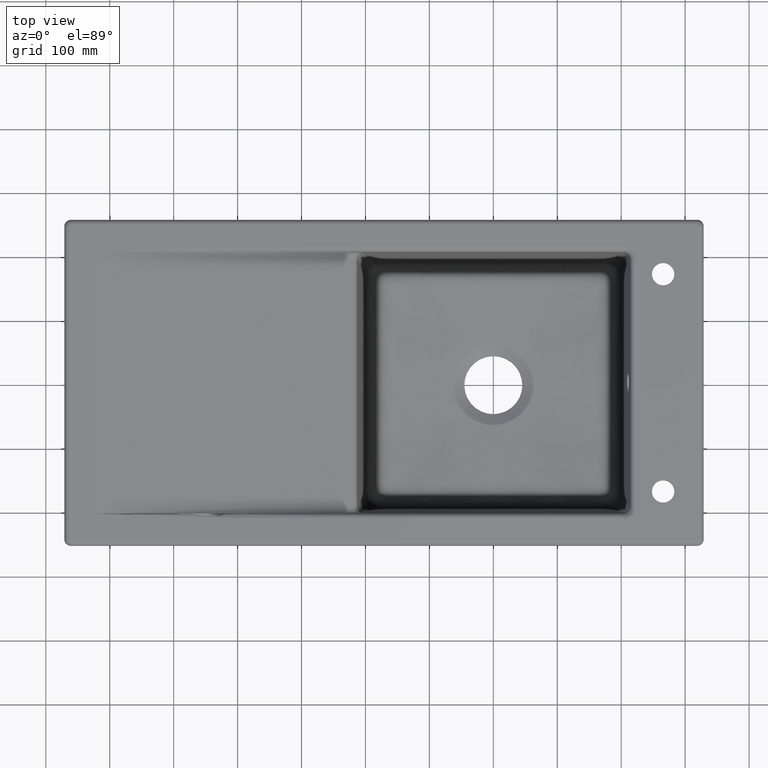
[diagram: clean part render]
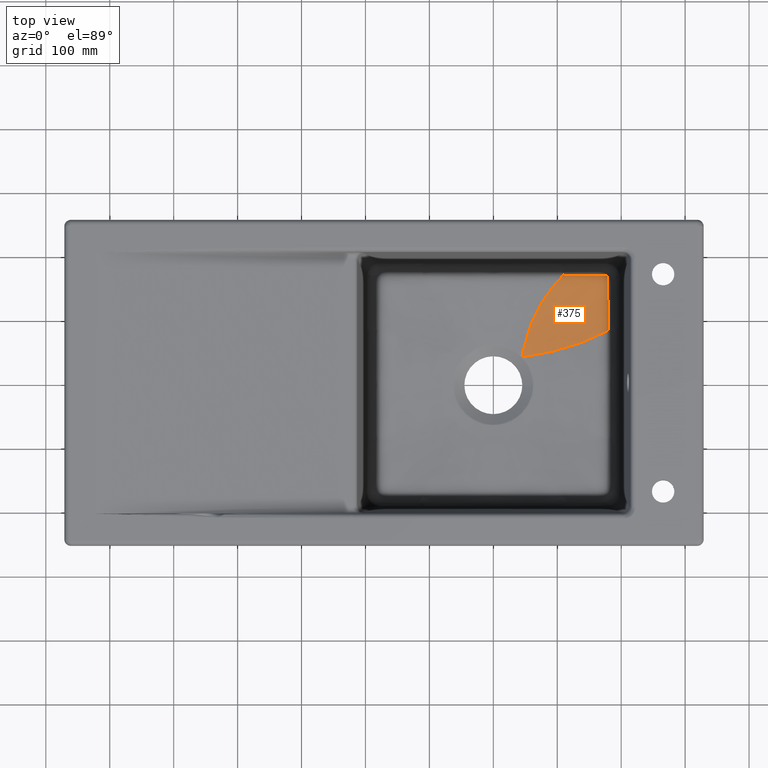
[diagram: same view with one face highlighted and labeled with its STEP entity id]
A machine part, top view. The second image highlights one B-rep face of the part: STEP entity #375.
In plain terms, the highlighted face is a freeform B-spline surface patch.
Its self-contained STEP definition (entity closure, byte-faithful):
#70=B_SPLINE_SURFACE_WITH_KNOTS('',3,3,((#12884,#12885,#12886,#12887,#12888,
#12889,#12890,#12891,#12892,#12893,#12894,#12895,#12896,#12897,#12898,#12899,
#12900,#12901),(#12902,#12903,#12904,#12905,#12906,#12907,#12908,#12909,
#12910,#12911,#12912,#12913,#12914,#12915,#12916,#12917,#12918,#12919),
(#12920,#12921,#12922,#12923,#12924,#12925,#12926,#12927,#12928,#12929,
#12930,#12931,#12932,#12933,#12934,#12935,#12936,#12937),(#12938,#12939,
#12940,#12941,#12942,#12943,#12944,#12945,#12946,#12947,#12948,#12949,#12950,
#12951,#12952,#12953,#12954,#12955),(#12956,#12957,#12958,#12959,#12960,
#12961,#12962,#12963,#12964,#12965,#12966,#12967,#12968,#12969,#12970,#12971,
#12972,#12973),(#12974,#12975,#12976,#12977,#12978,#12979,#12980,#12981,
#12982,#12983,#12984,#12985,#12986,#12987,#12988,#12989,#12990,#12991),
(#12992,#12993,#12994,#12995,#12996,#12997,#12998,#12999,#13000,#13001,
#13002,#13003,#13004,#13005,#13006,#13007,#13008,#13009),(#13010,#13011,
#13012,#13013,#13014,#13015,#13016,#13017,#13018,#13019,#13020,#13021,#13022,
#13023,#13024,#13025,#13026,#13027),(#13028,#13029,#13030,#13031,#13032,
#13033,#13034,#13035,#13036,#13037,#13038,#13039,#13040,#13041,#13042,#13043,
#13044,#13045),(#13046,#13047,#13048,#13049,#13050,#13051,#13052,#13053,
#13054,#13055,#13056,#13057,#13058,#13059,#13060,#13061,#13062,#13063),
(#13064,#13065,#13066,#13067,#13068,#13069,#13070,#13071,#13072,#13073,
#13074,#13075,#13076,#13077,#13078,#13079,#13080,#13081),(#13082,#13083,
#13084,#13085,#13086,#13087,#13088,#13089,#13090,#13091,#13092,#13093,#13094,
#13095,#13096,#13097,#13098,#13099),(#13100,#13101,#13102,#13103,#13104,
#13105,#13106,#13107,#13108,#13109,#13110,#13111,#13112,#13113,#13114,#13115,
#13116,#13117),(#13118,#13119,#13120,#13121,#13122,#13123,#13124,#13125,
#13126,#13127,#13128,#13129,#13130,#13131,#13132,#13133,#13134,#13135),
(#13136,#13137,#13138,#13139,#13140,#13141,#13142,#13143,#13144,#13145,
#13146,#13147,#13148,#13149,#13150,#13151,#13152,#13153),(#13154,#13155,
#13156,#13157,#13158,#13159,#13160,#13161,#13162,#13163,#13164,#13165,#13166,
#13167,#13168,#13169,#13170,#13171)),.UNSPECIFIED.,.F.,.F.,.F.,(4,1,1,1,
1,1,1,1,1,1,1,1,1,4),(4,1,1,1,1,1,1,1,1,1,1,1,1,1,1,4),(0.,0.124564507827518,
0.270470423189598,0.343423380870639,0.416376338551679,0.562282253913759,
0.635235211594799,0.708188169275839,0.78114112695688,0.85409408463792,0.92704704231896,
0.96352352115948,0.98176176057974,1.),(0.,0.0121218472907196,0.0881124744222027,
0.164103101553686,0.240093728685169,0.316084355816652,0.392074982948135,
0.544056237211101,0.620046864342584,0.696037491474068,0.772028118605551,
0.848018745737034,0.924009372868517,0.962004686434258,0.981002343217129,
1.),.UNSPECIFIED.);
#84=(
BOUNDED_CURVE()
B_SPLINE_CURVE(3,(#11010,#11011,#11012,#11013,#11014,#11015,#11016,#11017,
#11018,#11019,#11020,#11021,#11022,#11023,#11024,#11025,#11026,#11027,#11028,
#11029,#11030,#11031,#11032,#11033,#11034,#11035),.UNSPECIFIED.,.F.,.F.)
B_SPLINE_CURVE_WITH_KNOTS((4,2,2,2,2,2,2,2,2,2,2,2,4),(0.,0.0159423591020343,
0.0239135386530519,0.0318847182040686,0.0637694364081364,0.127538872816273,
0.255077745632546,0.510155491265092,0.637694364081366,0.765233236897638,
0.829002673305775,0.892772109713911,1.),.UNSPECIFIED.)
CURVE()
GEOMETRIC_REPRESENTATION_ITEM()
RATIONAL_B_SPLINE_CURVE((1.0000000000003,1.0000000000003,1.0000000000003,
1.0000000000003,1.0000000000003,1.0000000000003,1.0000000000003,1.0000000000003,
1.0000000000003,1.0000000000003,1.0000000000003,1.0000000000003,1.0000000000003,
1.00000000000031,1.00000000000031,1.00000000000031,1.00000000000031,1.00000000000032,
1.00000000000032,1.00000000000032,1.00000000000032,1.00000000000032,1.00000000000032,
1.00000000000033,1.00000000000033,1.00000000000033))
REPRESENTATION_ITEM('')
);
#375=ADVANCED_FACE('',(#614),#70,.F.);
#614=FACE_OUTER_BOUND('',#817,.T.);
#817=EDGE_LOOP('',(#1667,#1668,#1669,#1670,#1671));
#1136=B_SPLINE_CURVE_WITH_KNOTS('',3,(#12565,#12566,#12567,#12568,#12569,
#12570,#12571,#12572,#12573,#12574,#12575,#12576,#12577),.UNSPECIFIED.,
 .F.,.F.,(4,1,1,1,1,1,1,1,1,1,4),(0.,0.141591816998394,0.215551057887774,
0.289510298777154,0.437428780555914,0.511388021445294,0.585347262334674,
0.659306503224054,0.733265744113434,0.881184225892194,1.),.UNSPECIFIED.);
#1137=B_SPLINE_CURVE_WITH_KNOTS('',3,(#12669,#12670,#12671,#12672,#12673,
#12674,#12675,#12676,#12677,#12678,#12679,#12680,#12681,#12682),
 .UNSPECIFIED.,.F.,.F.,(4,1,1,1,1,1,1,1,1,1,1,4),(0.,0.00623660894462787,
0.0831992285541813,0.160161848163736,0.237124467773289,0.314087087382843,
0.391049706992397,0.544974946211505,0.698900185430612,0.775862805040166,
0.85282542464972,1.),.UNSPECIFIED.);
#1141=B_SPLINE_CURVE_WITH_KNOTS('',3,(#12832,#12833,#12834,#12835,#12836,
#12837,#12838,#12839),.UNSPECIFIED.,.F.,.F.,(4,2,2,4),(0.,5.48242813268084E-5,
0.999945175718691,1.),.UNSPECIFIED.);
#1142=B_SPLINE_CURVE_WITH_KNOTS('',3,(#12840,#12841,#12842,#12843,#12844,
#12845,#12846,#12847,#12848,#12849,#12850,#12851,#12852,#12853,#12854,#12855,
#12856,#12857,#12858,#12859,#12860,#12861,#12862,#12863,#12864,#12865,#12866,
#12867,#12868,#12869,#12870,#12871,#12872,#12873,#12874,#12875,#12876,#12877,
#12878,#12879,#12880,#12881,#12882,#12883),.UNSPECIFIED.,.F.,.F.,(4,2,2,
2,2,2,2,2,2,2,2,2,2,1,2,2,2,2,2,1,2,2,4),(0.,0.0625000000000013,0.0937500000000022,
0.109375000000003,0.117187500000003,0.125000000000003,0.187500000000002,
0.218750000000002,0.234375000000002,0.250000000000002,0.375000000000002,
0.437500000000002,0.468750000000002,0.484375000000002,0.492187500000001,
0.5,0.624999999999993,0.68749999999999,0.718749999999989,0.734374999999988,
0.742187499999988,0.749999999999988,1.),.UNSPECIFIED.);
#1667=ORIENTED_EDGE('',*,*,#2833,.F.);
#1668=ORIENTED_EDGE('',*,*,#2838,.T.);
#1669=ORIENTED_EDGE('',*,*,#2834,.F.);
#1670=ORIENTED_EDGE('',*,*,#2839,.T.);
#1671=ORIENTED_EDGE('',*,*,#2811,.F.);
#2444=VERTEX_POINT('',#10977);
#2447=VERTEX_POINT('',#11009);
#2461=VERTEX_POINT('',#12564);
#2462=VERTEX_POINT('',#12683);
#2463=VERTEX_POINT('',#12684);
#2811=EDGE_CURVE('',#2447,#2444,#84,.T.);
#2833=EDGE_CURVE('',#2461,#2447,#1136,.T.);
#2834=EDGE_CURVE('',#2462,#2463,#1137,.T.);
#2838=EDGE_CURVE('',#2461,#2463,#1141,.T.);
#2839=EDGE_CURVE('',#2462,#2444,#1142,.T.);
#10977=CARTESIAN_POINT('',(177.879180234192,170.540093542325,-191.578506722105));
#11009=CARTESIAN_POINT('',(109.362211473929,171.802772814069,-193.232335720157));
#11010=CARTESIAN_POINT('',(109.362663816069,171.803292218612,-193.232457413851));
#11011=CARTESIAN_POINT('',(109.666669719756,171.860010432528,-193.223627122999));
#11012=CARTESIAN_POINT('',(109.982007211186,171.905922642427,-193.216947616811));
#11013=CARTESIAN_POINT('',(110.495975815883,171.93989101215,-193.211436992192));
#11014=CARTESIAN_POINT('',(110.674051461702,171.945341510395,-193.210358683773));
#11015=CARTESIAN_POINT('',(111.055286094061,171.93434757222,-193.210308756833));
#11016=CARTESIAN_POINT('',(111.259672814066,171.916805244614,-193.211329930546));
#11017=CARTESIAN_POINT('',(112.235130701171,171.868708147883,-193.211065776202));
#11018=CARTESIAN_POINT('',(112.957500710658,171.878781618468,-193.203607338577));
#11019=CARTESIAN_POINT('',(115.174466016473,171.864776197476,-193.185480856167));
#11020=CARTESIAN_POINT('',(116.664443637441,171.842451813909,-193.171325117782));
#11021=CARTESIAN_POINT('',(121.120584696645,171.777536900667,-193.116321215263));
#11022=CARTESIAN_POINT('',(124.0871582187,171.725457324035,-193.064861836592));
#11023=CARTESIAN_POINT('',(132.956098670861,171.561202819411,-192.874261869656));
#11024=CARTESIAN_POINT('',(138.822714702234,171.445118458773,-192.699122929928));
#11025=CARTESIAN_POINT('',(147.545964665807,171.277521445368,-192.428006276115));
#11026=CARTESIAN_POINT('',(150.444081053288,171.220986523261,-192.336710096592));
#11027=CARTESIAN_POINT('',(156.23282483097,171.099491591714,-192.157526870232));
#11028=CARTESIAN_POINT('',(159.116981033387,171.037985052405,-192.070404249644));
#11029=CARTESIAN_POINT('',(163.465323978389,170.924355236036,-191.941912734809));
#11030=CARTESIAN_POINT('',(164.921469082898,170.881449702974,-191.898612803742));
#11031=CARTESIAN_POINT('',(167.792263181542,170.809266968183,-191.814795581755));
#11032=CARTESIAN_POINT('',(169.205764574198,170.780301267845,-191.774877548337));
#11033=CARTESIAN_POINT('',(172.995517856896,170.700816868522,-191.680206203672));
#11034=CARTESIAN_POINT('',(175.413487499374,170.633220400502,-191.63218948057));
#11035=CARTESIAN_POINT('',(177.879175846886,170.540132928062,-191.578521635298));
#12564=CARTESIAN_POINT('',(44.3689322543329,45.0937120771915,-201.978779737527));
#12565=CARTESIAN_POINT('',(44.3689362924662,45.0937164682386,-201.978998522534));
#12566=CARTESIAN_POINT('',(45.6807365134577,51.8027942856332,-201.820552515146));
#12567=CARTESIAN_POINT('',(47.9539297138038,61.9624507419708,-201.518959765869));
#12568=CARTESIAN_POINT('',(51.777153432494,75.4042903540788,-200.997339562121));
#12569=CARTESIAN_POINT('',(56.2968243873298,88.9472672362657,-200.385546779812));
#12570=CARTESIAN_POINT('',(61.6909776473194,102.171434764291,-199.654434937414));
#12571=CARTESIAN_POINT('',(67.9500016752922,114.990515766059,-198.807635731743));
#12572=CARTESIAN_POINT('',(73.0712458710614,124.380049353851,-198.114291635568));
#12573=CARTESIAN_POINT('',(78.6146951225087,133.521775639071,-197.359538479105));
#12574=CARTESIAN_POINT('',(86.5552524937462,145.354637605332,-196.28239288272));
#12575=CARTESIAN_POINT('',(96.6234702028426,158.324000774887,-194.945223083118));
#12576=CARTESIAN_POINT('',(105.353765467584,167.720765110537,-193.691170892951));
#12577=CARTESIAN_POINT('',(109.361723803895,171.802246613293,-193.232277846092));
#12669=CARTESIAN_POINT('',(179.512881132391,85.1143916647424,-193.401842955131));
#12670=CARTESIAN_POINT('',(179.253208415546,84.9793908047028,-193.431171822952));
#12671=CARTESIAN_POINT('',(175.787175783564,83.1823690687327,-193.824179680294));
#12672=CARTESIAN_POINT('',(169.065655460795,79.8250567808445,-194.615514358731));
#12673=CARTESIAN_POINT('',(159.211940416895,75.2757300717008,-195.516277973933));
#12674=CARTESIAN_POINT('',(149.23230852189,71.008640097478,-196.406733529103));
#12675=CARTESIAN_POINT('',(139.131489926792,67.0270389450302,-197.253850367511));
#12676=CARTESIAN_POINT('',(125.509932913777,62.1038610542545,-198.281083182657));
#12677=CARTESIAN_POINT('',(108.222603700192,56.6744315025275,-199.419979359816));
#12678=CARTESIAN_POINT('',(90.6474916604687,52.2161078874131,-200.356053177396));
#12679=CARTESIAN_POINT('',(76.449562559933,49.2382574094846,-200.980524001914));
#12680=CARTESIAN_POINT('',(62.4810191383402,46.7302241301031,-201.511487529428));
#12681=CARTESIAN_POINT('',(52.0211548232311,45.2211512842149,-201.817524530477));
#12682=CARTESIAN_POINT('',(45.1409938508793,44.3179167443783,-201.978151579039));
#12683=CARTESIAN_POINT('',(179.512885030844,85.1143895389247,-193.40186768621));
#12684=CARTESIAN_POINT('',(45.140998257444,44.31792102221,-201.978364768914));
#12832=CARTESIAN_POINT('',(44.3690077499637,45.0941144515594,-201.978551320735));
#12833=CARTESIAN_POINT('',(44.3690219386256,45.0941003561356,-201.97855135073));
#12834=CARTESIAN_POINT('',(44.3690361272888,45.0940862607131,-201.978551380719));
#12835=CARTESIAN_POINT('',(44.6278243351648,44.8369983917354,-201.979098356959));
#12836=CARTESIAN_POINT('',(44.8849897342337,44.5782923515301,-201.979078898136));
#12837=CARTESIAN_POINT('',(45.1404355874303,44.3178830857217,-201.978590574522));
#12838=CARTESIAN_POINT('',(45.1404495928249,44.3178688081797,-201.97859054775));
#12839=CARTESIAN_POINT('',(45.1404635982211,44.3178545306393,-201.978590520971));
#12840=CARTESIAN_POINT('',(179.512777802272,85.1143910624747,-193.401892639696));
#12841=CARTESIAN_POINT('',(179.532220793061,86.4259914771197,-193.405361283129));
#12842=CARTESIAN_POINT('',(179.539239054987,87.9708477592128,-193.409987816762));
#12843=CARTESIAN_POINT('',(179.539299655567,90.6410620870974,-193.40916933752));
#12844=CARTESIAN_POINT('',(179.537615992503,91.5899558173404,-193.407775716569));
#12845=CARTESIAN_POINT('',(179.534071437699,93.1019103361031,-193.402879043541));
#12846=CARTESIAN_POINT('',(179.532723818059,93.6206635292685,-193.400781683847));
#12847=CARTESIAN_POINT('',(179.530684636148,94.4209871558908,-193.396803764521));
#12848=CARTESIAN_POINT('',(179.530002257172,94.6914606275535,-193.395339065565));
#12849=CARTESIAN_POINT('',(179.528674626484,95.2398116975167,-193.392108900074));
#12850=CARTESIAN_POINT('',(179.527919199459,95.5690414601617,-193.389991856108));
#12851=CARTESIAN_POINT('',(179.523473785004,97.6411149293107,-193.375805610466));
#12852=CARTESIAN_POINT('',(179.517207057649,99.4521754931825,-193.357980494743));
#12853=CARTESIAN_POINT('',(179.505858131888,102.12289162727,-193.324947846639));
#12854=CARTESIAN_POINT('',(179.501744657409,103.005483235958,-193.312907622261));
#12855=CARTESIAN_POINT('',(179.495245469451,104.317935129052,-193.293530936199));
#12856=CARTESIAN_POINT('',(179.493024476395,104.753513099858,-193.286852376099));
#12857=CARTESIAN_POINT('',(179.48849834477,105.620863605653,-193.273091764056));
#12858=CARTESIAN_POINT('',(179.486490463792,105.99806761137,-193.266931978438));
#12859=CARTESIAN_POINT('',(179.46257548275,110.358107851717,-193.193275546733));
#12860=CARTESIAN_POINT('',(179.438517614042,114.072839370526,-193.113656853663));
#12861=CARTESIAN_POINT('',(179.393435389601,119.411352657435,-192.990646383155));
#12862=CARTESIAN_POINT('',(179.376996350391,121.151897475381,-192.948946516595));
#12863=CARTESIAN_POINT('',(179.349947476013,123.705110002311,-192.886513429325));
#12864=CARTESIAN_POINT('',(179.340534041955,124.546578802899,-192.865720165416));
#12865=CARTESIAN_POINT('',(179.32578377341,125.794475527629,-192.834663765836));
#12866=CARTESIAN_POINT('',(179.318250497123,126.414847424461,-192.819166881123));
#12867=CARTESIAN_POINT('',(179.310471255144,127.029872824185,-192.803727816892));
#12868=CARTESIAN_POINT('',(179.305229480421,127.438703604175,-192.793449048834));
#12869=CARTESIAN_POINT('',(179.303179329586,127.597085784845,-192.789462515076));
#12870=CARTESIAN_POINT('',(179.247495456325,131.824481675534,-192.682859286061));
#12871=CARTESIAN_POINT('',(179.183220030197,135.589575126584,-192.585334321233));
#12872=CARTESIAN_POINT('',(179.066419693588,140.92628663615,-192.446422517023));
#12873=CARTESIAN_POINT('',(179.024084484202,142.653308999068,-192.401483377827));
#12874=CARTESIAN_POINT('',(178.955031482482,145.166789781214,-192.337059686816));
#12875=CARTESIAN_POINT('',(178.931085988475,145.991779875828,-192.316059582488));
#12876=CARTESIAN_POINT('',(178.893685908867,147.210181904803,-192.285122011088));
#12877=CARTESIAN_POINT('',(178.874615282913,147.814611806388,-192.269793943032));
#12878=CARTESIAN_POINT('',(178.854970633667,148.411914371914,-192.254649726711));
#12879=CARTESIAN_POINT('',(178.841744529221,148.808535292374,-192.244591471273));
#12880=CARTESIAN_POINT('',(178.836130119675,148.97503147276,-192.240368621208));
#12881=CARTESIAN_POINT('',(178.578490456292,156.490949188091,-192.049626896341));
#12882=CARTESIAN_POINT('',(178.149615602153,163.571225179825,-191.791610664386));
#12883=CARTESIAN_POINT('',(177.879175141205,170.540065427035,-191.578485102144));
#12884=CARTESIAN_POINT('',(190.172256934405,175.276128015536,-191.296018377343));
#12885=CARTESIAN_POINT('',(189.855051349653,175.250297772379,-191.297554253339));
#12886=CARTESIAN_POINT('',(187.549152269575,175.063755776512,-191.3132807604));
#12887=CARTESIAN_POINT('',(183.251167188915,174.73292744938,-191.39933921129));
#12888=CARTESIAN_POINT('',(177.244844061671,174.316068666936,-191.493982930849));
#12889=CARTESIAN_POINT('',(171.223849757647,173.941145999974,-191.602229197767));
#12890=CARTESIAN_POINT('',(165.182397031386,173.608139143475,-191.769651581089));
#12891=CARTESIAN_POINT('',(157.100084412642,173.221956642021,-192.004730011793));
#12892=CARTESIAN_POINT('',(148.98254895741,172.923020560463,-192.268921066927));
#12893=CARTESIAN_POINT('',(140.833395152461,172.714157155233,-192.535624903428));
#12894=CARTESIAN_POINT('',(134.707842945076,172.601779367504,-192.724535653631));
#12895=CARTESIAN_POINT('',(128.570214887459,172.534990215698,-192.890752391789));
#12896=CARTESIAN_POINT('',(122.423035455111,172.514344411329,-193.022174976953));
#12897=CARTESIAN_POINT('',(117.296244399471,172.527026982413,-193.096122982961));
#12898=CARTESIAN_POINT('',(113.707355875505,172.546516680275,-193.127619806102));
#12899=CARTESIAN_POINT('',(111.656864809438,172.55995808445,-193.142024679774));
#12900=CARTESIAN_POINT('',(110.631632416582,172.567180700427,-193.142296847013));
#12901=CARTESIAN_POINT('',(110.119186433257,172.571038564212,-193.147178524289));
#12902=CARTESIAN_POINT('',(189.48469349856,171.727556904665,-191.256125707373));
#12903=CARTESIAN_POINT('',(189.154527754014,171.695057051101,-191.260277969121));
#12904=CARTESIAN_POINT('',(186.754364804527,171.460322854416,-191.295848388671));
#12905=CARTESIAN_POINT('',(182.279777773028,171.043681813772,-191.428877937283));
#12906=CARTESIAN_POINT('',(176.019762920013,170.517778548681,-191.577517100608));
#12907=CARTESIAN_POINT('',(169.741268544346,170.043765705831,-191.737829689181));
#12908=CARTESIAN_POINT('',(163.437338854656,169.621638000075,-191.964614883125));
#12909=CARTESIAN_POINT('',(154.99851582361,169.13035167093,-192.274443683656));
#12910=CARTESIAN_POINT('',(146.515898461016,168.746998176562,-192.609365925341));
#12911=CARTESIAN_POINT('',(137.994038152372,168.475046024785,-192.937218899902));
#12912=CARTESIAN_POINT('',(131.585647446612,168.325817318729,-193.164648021503));
#12913=CARTESIAN_POINT('',(125.162241964028,168.232981021323,-193.359646505952));
#12914=CARTESIAN_POINT('',(118.726911884784,168.197274388723,-193.507612705912));
#12915=CARTESIAN_POINT('',(113.358898116808,168.204511246183,-193.583778886338));
#12916=CARTESIAN_POINT('',(109.601035671844,168.222720440923,-193.610425450544));
#12917=CARTESIAN_POINT('',(107.454028759946,168.235981587202,-193.620677162843));
#12918=CARTESIAN_POINT('',(106.380534777358,168.243239518444,-193.617238108821));
#12919=CARTESIAN_POINT('',(105.843991539704,168.247170327652,-193.621183590598));
#12920=CARTESIAN_POINT('',(188.043874136294,164.002078651297,-191.384783254427));
#12921=CARTESIAN_POINT('',(187.686472805183,163.95462007052,-191.397413755677));
#12922=CARTESIAN_POINT('',(185.088183789205,163.611740667642,-191.495966743165));
#12923=CARTESIAN_POINT('',(180.242020006588,163.00173097618,-191.762235842328));
#12924=CARTESIAN_POINT('',(173.448423403823,162.228015584453,-192.065232461409));
#12925=CARTESIAN_POINT('',(166.627801108982,161.526520077142,-192.369039785728));
#12926=CARTESIAN_POINT('',(159.77109380527,160.897304224381,-192.7451110531));
#12927=CARTESIAN_POINT('',(150.581298671819,160.157949490577,-193.235103990608));
#12928=CARTESIAN_POINT('',(141.329360594629,159.56877852686,-193.727089354698));
#12929=CARTESIAN_POINT('',(132.021971176741,159.134558307883,-194.178508996675));
#12930=CARTESIAN_POINT('',(125.017385552383,158.884958277089,-194.477162703668));
#12931=CARTESIAN_POINT('',(117.991490865162,158.713831883306,-194.717516897964));
#12932=CARTESIAN_POINT('',(110.948506935752,158.622385245063,-194.880351017189));
#12933=CARTESIAN_POINT('',(105.071614061571,158.597635203609,-194.940951471314));
#12934=CARTESIAN_POINT('',(100.95713954625,158.598544885075,-194.941415479162));
#12935=CARTESIAN_POINT('',(98.6063859749344,158.603016387947,-194.933152635918));
#12936=CARTESIAN_POINT('',(97.4309991449279,158.606130495338,-194.917125335249));
#12937=CARTESIAN_POINT('',(96.8435681260804,158.608094177616,-194.916374471147));
#12938=CARTESIAN_POINT('',(186.417114912769,153.997524251326,-191.601902192915));
#12939=CARTESIAN_POINT('',(186.028753273793,153.927481859179,-191.624359195683));
#12940=CARTESIAN_POINT('',(183.205153843634,153.421219054467,-191.795447310629));
#12941=CARTESIAN_POINT('',(177.935326546167,152.517533612841,-192.20908057883));
#12942=CARTESIAN_POINT('',(170.53346257787,151.363163145854,-192.679654530005));
#12943=CARTESIAN_POINT('',(163.093234222712,150.307644754849,-193.138095376));
#12944=CARTESIAN_POINT('',(155.604107166439,149.351210255304,-193.667689958367));
#12945=CARTESIAN_POINT('',(145.554497999444,148.21216827865,-194.338345639201));
#12946=CARTESIAN_POINT('',(135.420725612484,147.278328855686,-194.980530509452));
#12947=CARTESIAN_POINT('',(125.212431209137,146.555842789586,-195.543128082923));
#12948=CARTESIAN_POINT('',(117.523868985557,146.117642322963,-195.901999933191));
#12949=CARTESIAN_POINT('',(109.806522069689,145.786516366361,-196.175941224734));
#12950=CARTESIAN_POINT('',(102.065772528933,145.564466241717,-196.342107179768));
#12951=CARTESIAN_POINT('',(95.6041361886652,145.450220201604,-196.378206321167));
#12952=CARTESIAN_POINT('',(91.0795712619613,145.395737525622,-196.346716582755));
#12953=CARTESIAN_POINT('',(88.4943988341472,145.370212611525,-196.316563889938));
#12954=CARTESIAN_POINT('',(87.2017574464222,145.358769964763,-196.286766335491));
#12955=CARTESIAN_POINT('',(86.5557373787459,145.353591665338,-196.280260727248));
#12956=CARTESIAN_POINT('',(185.177692655116,145.393714721426,-191.841370910013));
#12957=CARTESIAN_POINT('',(184.765576014593,145.302569641504,-191.871880566303));
#12958=CARTESIAN_POINT('',(181.769032104945,144.643579115457,-192.102026257344));
#12959=CARTESIAN_POINT('',(176.173135646664,143.464556193683,-192.630662172516));
#12960=CARTESIAN_POINT('',(168.30312978964,141.951062997705,-193.230882913632));
#12961=CARTESIAN_POINT('',(160.38474961986,140.559166150532,-193.808701147783));
#12962=CARTESIAN_POINT('',(152.407029764889,139.289305155424,-194.451055905634));
#12963=CARTESIAN_POINT('',(141.692575850216,137.763546327069,-195.251789998837));
#12964=CARTESIAN_POINT('',(130.87604579456,136.489785744124,-195.99768136341));
#12965=CARTESIAN_POINT('',(119.969746712122,135.475167952868,-196.633532403105));
#12966=CARTESIAN_POINT('',(111.751037817588,134.841225891312,-197.030604937263));
#12967=CARTESIAN_POINT('',(103.497506984282,134.338599699101,-197.32453709831));
#12968=CARTESIAN_POINT('',(95.2153367781488,133.970103823337,-197.490945091253));
#12969=CARTESIAN_POINT('',(88.2996362544965,133.750550412526,-197.509839375975));
#12970=CARTESIAN_POINT('',(83.4563714728925,133.62886411569,-197.456959281699));
#12971=CARTESIAN_POINT('',(80.6889269219507,133.566470666959,-197.4121224445));
#12972=CARTESIAN_POINT('',(79.3050954623289,133.537034564581,-197.373553567514));
#12973=CARTESIAN_POINT('',(78.6134875144535,133.522973060424,-197.363006631971));
#12974=CARTESIAN_POINT('',(184.037121508269,136.720396762032,-192.116090458054));
#12975=CARTESIAN_POINT('',(183.60301881626,136.606872583055,-192.154411722969));
#12976=CARTESIAN_POINT('',(180.446356469893,135.785887355651,-192.441577873785));
#12977=CARTESIAN_POINT('',(174.54791659149,134.314421432624,-193.077719123389));
#12978=CARTESIAN_POINT('',(166.243503553257,132.418378286898,-193.797912467904));
#12979=CARTESIAN_POINT('',(157.880452397169,130.666979532539,-194.485698187415));
#12980=CARTESIAN_POINT('',(149.447914871651,129.060913359495,-195.227398837881));
#12981=CARTESIAN_POINT('',(138.114116199309,127.11842397258,-196.140132824283));
#12982=CARTESIAN_POINT('',(126.660853087908,125.475213666632,-196.970883966912));
#12983=CARTESIAN_POINT('',(115.103204957095,124.13929932032,-197.662500915152));
#12984=CARTESIAN_POINT('',(106.389609184052,123.287906783044,-198.086399641072));
#12985=CARTESIAN_POINT('',(97.6353604643542,122.592258090384,-198.39167235));
#12986=CARTESIAN_POINT('',(88.8473171429138,122.05607243413,-198.553423250542));
#12987=CARTESIAN_POINT('',(81.507105696308,121.713895866264,-198.554693110195));
#12988=CARTESIAN_POINT('',(76.3656929517331,121.513215727339,-198.482186067327));
#12989=CARTESIAN_POINT('',(73.4276606291671,121.407328971406,-198.424060927849));
#12990=CARTESIAN_POINT('',(71.9584706772211,121.356640304316,-198.378057055724));
#12991=CARTESIAN_POINT('',(71.2241737145078,121.332066827213,-198.36372386695));
#12992=CARTESIAN_POINT('',(183.047990568563,127.952152397654,-192.41389394358));
#12993=CARTESIAN_POINT('',(182.594610218533,127.814505893099,-192.459234410262));
#12994=CARTESIAN_POINT('',(179.297466323524,126.818869933992,-192.797285403188));
#12995=CARTESIAN_POINT('',(173.132489058216,125.031601729035,-193.524650907053));
#12996=CARTESIAN_POINT('',(164.445211241791,122.721016817403,-194.344990659333));
#12997=CARTESIAN_POINT('',(155.688594383104,120.57853523919,-195.124993950554));
#12998=CARTESIAN_POINT('',(146.852729620002,118.605155369381,-195.943963866241));
#12999=CARTESIAN_POINT('',(134.968864761983,116.204934529771,-196.941212838123));
#13000=CARTESIAN_POINT('',(122.948821500237,114.151911812192,-197.831546268169));
#13001=CARTESIAN_POINT('',(110.810611152091,112.454794311633,-198.559050084926));
#13002=CARTESIAN_POINT('',(101.655564427432,111.356223706584,-198.999157343155));
#13003=CARTESIAN_POINT('',(92.4542868056311,110.438060090215,-199.310919052625));
#13004=CARTESIAN_POINT('',(83.2141253312089,109.705064828297,-199.470467956763));
#13005=CARTESIAN_POINT('',(75.494047299561,109.216542643639,-199.463053745285));
#13006=CARTESIAN_POINT('',(70.0855099115238,108.92073960426,-199.380998596459));
#13007=CARTESIAN_POINT('',(66.9945210108066,108.762306087026,-199.316136746603));
#13008=CARTESIAN_POINT('',(65.4487699231493,108.685916179154,-199.267001278831));
#13009=CARTESIAN_POINT('',(64.6761566508037,108.648607104375,-199.250431400626));
#13010=CARTESIAN_POINT('',(182.216231266576,119.104916645573,-192.704558299247));
#13011=CARTESIAN_POINT('',(181.746386438684,118.941700670964,-192.755679833332));
#13012=CARTESIAN_POINT('',(178.329157016806,117.760909236166,-193.135289102369));
#13013=CARTESIAN_POINT('',(171.93502770649,115.638473846641,-193.932318216365));
#13014=CARTESIAN_POINT('',(162.918260926768,112.886875017461,-194.827233303663));
#13015=CARTESIAN_POINT('',(153.82093433856,110.327220041369,-195.67754886422));
#13016=CARTESIAN_POINT('',(144.6349007377,107.96087897675,-196.549145517405));
#13017=CARTESIAN_POINT('',(132.272361925143,105.069168055523,-197.60212268447));
#13018=CARTESIAN_POINT('',(119.757439632582,102.573153859166,-198.528638005505));
#13019=CARTESIAN_POINT('',(107.111236667267,100.482051582913,-199.277205721751));
#13020=CARTESIAN_POINT('',(97.5694292722163,99.1118897294786,-199.728285394478));
#13021=CARTESIAN_POINT('',(87.9759833644309,97.9470038557147,-200.048655587191));
#13022=CARTESIAN_POINT('',(78.3385476086739,96.9933349306625,-200.217018109354));
#13023=CARTESIAN_POINT('',(70.2840858189083,96.3391000410049,-200.218318519703));
#13024=CARTESIAN_POINT('',(64.6399978581308,95.9350809745645,-200.143410346042));
#13025=CARTESIAN_POINT('',(61.4139879474006,95.71677839484,-200.082342771466));
#13026=CARTESIAN_POINT('',(59.8006218212071,95.6111029248289,-200.036435033098));
#13027=CARTESIAN_POINT('',(58.9941384530225,95.5592664995641,-200.020222549213));
#13028=CARTESIAN_POINT('',(181.671519825974,112.434403207623,-192.90835850616));
#13029=CARTESIAN_POINT('',(181.190740299733,112.251367229388,-192.963040317459));
#13030=CARTESIAN_POINT('',(177.693695794123,110.927042445049,-193.368035097546));
#13031=CARTESIAN_POINT('',(171.146485591409,108.544629603151,-194.204680732137));
#13032=CARTESIAN_POINT('',(161.909404637697,105.450510441531,-195.140733404852));
#13033=CARTESIAN_POINT('',(152.583077339551,102.566381619934,-196.031384977193));
#13034=CARTESIAN_POINT('',(143.161088870576,99.8939227084718,-196.929247721053));
#13035=CARTESIAN_POINT('',(130.475349400907,96.6185843871201,-198.009201161825));
#13036=CARTESIAN_POINT('',(117.625305007478,93.7755571403993,-198.951851906239));
#13037=CARTESIAN_POINT('',(104.634456911098,91.374346180693,-199.71063094682));
#13038=CARTESIAN_POINT('',(94.8299615122908,89.7895876408155,-200.169253375129));
#13039=CARTESIAN_POINT('',(84.9698460161277,88.4288350556881,-200.499634015682));
#13040=CARTESIAN_POINT('',(75.0618917628718,87.2989828114487,-200.683171743077));
#13041=CARTESIAN_POINT('',(66.7793870990683,86.5118042366645,-200.702724153725));
#13042=CARTESIAN_POINT('',(60.9744208856946,86.020782855445,-200.643881675906));
#13043=CARTESIAN_POINT('',(57.6561102738192,85.7543178239889,-200.592343040764));
#13044=CARTESIAN_POINT('',(55.996504093443,85.6250852407419,-200.552768083733));
#13045=CARTESIAN_POINT('',(55.1668402333382,85.5615567785266,-200.538492711264));
#13046=CARTESIAN_POINT('',(181.206416984199,105.733531910803,-193.084896233758));
#13047=CARTESIAN_POINT('',(180.716126203492,105.530117611113,-193.142170776011));
#13048=CARTESIAN_POINT('',(177.149586962092,104.058205954372,-193.56539352229));
#13049=CARTESIAN_POINT('',(170.468214059565,101.408333916273,-194.42675520056));
#13050=CARTESIAN_POINT('',(161.037814569232,97.9614387409065,-195.386694739081));
#13051=CARTESIAN_POINT('',(151.50921671307,94.742694354953,-196.303523020973));
#13052=CARTESIAN_POINT('',(141.878149176742,91.7541205894278,-197.213382472783));
#13053=CARTESIAN_POINT('',(128.905293213945,88.0819421074211,-198.304999343211));
#13054=CARTESIAN_POINT('',(115.756454198756,84.8788251779814,-199.253682928263));
#13055=CARTESIAN_POINT('',(102.457611561664,82.1544739726048,-200.01937648851));
#13056=CARTESIAN_POINT('',(92.4180420778814,80.3453547660014,-200.487268155569));
#13057=CARTESIAN_POINT('',(82.3189505150305,78.778997586335,-200.834322059568));
#13058=CARTESIAN_POINT('',(72.1681573491944,77.4633189514858,-201.045404405855));
#13059=CARTESIAN_POINT('',(63.6805612952809,76.5353565899349,-201.098674945473));
#13060=CARTESIAN_POINT('',(57.7306484795135,75.9520431288257,-201.069533059424));
#13061=CARTESIAN_POINT('',(54.3290868920474,75.6344630621454,-201.035967518992));
#13062=CARTESIAN_POINT('',(52.627754444963,75.4802322874367,-201.007546775888));
#13063=CARTESIAN_POINT('',(51.7771535113142,75.4042906528175,-200.997339551454));
#13064=CARTESIAN_POINT('',(180.824043722443,99.0065575199537,-193.219702066444));
#13065=CARTESIAN_POINT('',(180.32572672783,98.7822800215136,-193.278389607954));
#13066=CARTESIAN_POINT('',(176.700462133926,97.159259267611,-193.711164373247));
#13067=CARTESIAN_POINT('',(169.904698556579,94.2354014934264,-194.579837961614));
#13068=CARTESIAN_POINT('',(160.309204330838,90.4267194022418,-195.543712544363));
#13069=CARTESIAN_POINT('',(150.606336253065,86.8643803230851,-196.47063410722));
#13070=CARTESIAN_POINT('',(140.794377655258,83.5507750970542,-197.377073733528));
#13071=CARTESIAN_POINT('',(127.572294997645,79.4698746425942,-198.464547622752));
#13072=CARTESIAN_POINT('',(114.162878515402,75.8947579683556,-199.410221850129));
#13073=CARTESIAN_POINT('',(100.594665644811,72.835237146911,-200.182147461045));
#13074=CARTESIAN_POINT('',(90.3491583031115,70.7926627479352,-200.66377257739));
#13075=CARTESIAN_POINT('',(80.0403485241753,69.0115503559627,-201.037677263438));
#13076=CARTESIAN_POINT('',(69.6760023802227,67.5009073352602,-201.292965320889));
#13077=CARTESIAN_POINT('',(61.0076400619429,66.4246734910957,-201.399643996677));
#13078=CARTESIAN_POINT('',(54.9296922272818,65.7439889112539,-201.417134240129));
#13079=CARTESIAN_POINT('',(51.4544946042431,65.3724513672134,-201.411966866951));
#13080=CARTESIAN_POINT('',(49.7162340360163,65.1918329689442,-201.400544602984));
#13081=CARTESIAN_POINT('',(48.8470820639606,65.1027819933936,-201.397056073009));
#13082=CARTESIAN_POINT('',(180.56467413492,93.3861037964602,-193.287644627898));
#13083=CARTESIAN_POINT('',(180.060731583173,93.1441622181374,-193.346384235381));
#13084=CARTESIAN_POINT('',(176.394237283845,91.3931948805723,-193.778869930527));
#13085=CARTESIAN_POINT('',(169.517301479681,88.2372376023267,-194.637443842699));
#13086=CARTESIAN_POINT('',(159.804604941696,84.121770015201,-195.586123831735));
#13087=CARTESIAN_POINT('',(149.976786490546,80.2677377099881,-196.506706084343));
#13088=CARTESIAN_POINT('',(140.034600942076,76.6778663271699,-197.396600982977));
#13089=CARTESIAN_POINT('',(126.632550862338,72.2490353934165,-198.466986374556));
#13090=CARTESIAN_POINT('',(113.034149574186,68.3563777677309,-199.403153151728));
#13091=CARTESIAN_POINT('',(99.2701326821652,65.0097195585524,-200.181238444523));
#13092=CARTESIAN_POINT('',(88.8747382339852,62.7665723269857,-200.679679308944));
#13093=CARTESIAN_POINT('',(78.4130768010925,60.8003292823948,-201.086591702439));
#13094=CARTESIAN_POINT('',(67.8927911694206,59.1209640899058,-201.395252645014));
#13095=CARTESIAN_POINT('',(59.0921452189852,57.9159882240891,-201.565471696623));
#13096=CARTESIAN_POINT('',(52.9202902339955,57.150627321471,-201.637987986635));
#13097=CARTESIAN_POINT('',(49.391006940607,56.7321440311832,-201.666410825335));
#13098=CARTESIAN_POINT('',(47.6256075306246,56.528567913476,-201.674663760957));
#13099=CARTESIAN_POINT('',(46.7428036706026,56.4281062769183,-201.679307927187));
#13100=CARTESIAN_POINT('',(180.40850275829,89.4475782260034,-193.310370205821));
#13101=CARTESIAN_POINT('',(179.901078570825,89.1931857401721,-193.368531956908));
#13102=CARTESIAN_POINT('',(176.209032519562,87.3520276559699,-193.796316169158));
#13103=CARTESIAN_POINT('',(169.281363144491,84.0323961267711,-194.639033777235));
#13104=CARTESIAN_POINT('',(159.495529175789,79.7004114669788,-195.567050423324));
#13105=CARTESIAN_POINT('',(149.589169056744,75.6403223843522,-196.475190698128));
#13106=CARTESIAN_POINT('',(139.564947513143,71.8551023317072,-197.346121838164));
#13107=CARTESIAN_POINT('',(126.049374076988,67.1799490508403,-198.397220015227));
#13108=CARTESIAN_POINT('',(112.331514825132,63.0619929991296,-199.323026143646));
#13109=CARTESIAN_POINT('',(98.4436789907047,59.5110302722303,-200.106035651289));
#13110=CARTESIAN_POINT('',(87.953487142438,57.1248508858582,-200.619214139543));
#13111=CARTESIAN_POINT('',(77.3951235079953,55.0262424776869,-201.055028345493));
#13112=CARTESIAN_POINT('',(66.7761036492987,53.2258851861011,-201.41001353316));
#13113=CARTESIAN_POINT('',(57.8916080568011,51.9283416212115,-201.634995428008));
#13114=CARTESIAN_POINT('',(51.6601428074345,51.1020128111946,-201.754751121872));
#13115=CARTESIAN_POINT('',(48.0964926835338,50.6497106403861,-201.812040000725));
#13116=CARTESIAN_POINT('',(46.3138434563894,50.4295946729036,-201.837032163588));
#13117=CARTESIAN_POINT('',(45.4223524773906,50.3209089839052,-201.848737132021));
#13118=CARTESIAN_POINT('',(180.325630858701,87.1962292520386,-193.31666947445));
#13119=CARTESIAN_POINT('',(179.816332012639,86.9347048415466,-193.374332142653));
#13120=CARTESIAN_POINT('',(176.110518082391,85.0418836783264,-193.798192146953));
#13121=CARTESIAN_POINT('',(169.155393847889,81.6284761370696,-194.629422024677));
#13122=CARTESIAN_POINT('',(159.330042463491,77.1723862534197,-195.542868641873));
#13123=CARTESIAN_POINT('',(149.381096230729,72.9941294165826,-196.441701272948));
#13124=CARTESIAN_POINT('',(139.312362644284,69.0968245300696,-197.299762312366));
#13125=CARTESIAN_POINT('',(125.735174328251,64.2802487153897,-198.337829172836));
#13126=CARTESIAN_POINT('',(111.952444653123,60.0327926406158,-199.256712232156));
#13127=CARTESIAN_POINT('',(97.9973920428776,56.3642238689866,-200.042739670839));
#13128=CARTESIAN_POINT('',(87.4557513010633,53.8956134923913,-200.565195649802));
#13129=CARTESIAN_POINT('',(76.8449128886472,51.7206185781741,-201.019176245142));
#13130=CARTESIAN_POINT('',(66.1723079756562,49.850331553055,-201.403174857802));
#13131=CARTESIAN_POINT('',(57.2422898867045,48.4992120686712,-201.6623616438));
#13132=CARTESIAN_POINT('',(50.9784419625065,47.6375695155001,-201.811578535301));
#13133=CARTESIAN_POINT('',(47.3961136588253,47.1656728829606,-201.886876005511));
#13134=CARTESIAN_POINT('',(45.6040882060646,46.9359730272308,-201.922272634214));
#13135=CARTESIAN_POINT('',(44.7078724291979,46.8225209689843,-201.938398837901));
#13136=CARTESIAN_POINT('',(180.286190711846,86.0703937824989,-193.316980606662));
#13137=CARTESIAN_POINT('',(179.7759905014,85.8052992128058,-193.374327096809));
#13138=CARTESIAN_POINT('',(176.063553518296,83.8866155522144,-193.795737698005));
#13139=CARTESIAN_POINT('',(169.095182791079,80.4262563321579,-194.620281397491));
#13140=CARTESIAN_POINT('',(159.250788959253,75.9080099609441,-195.525351128828));
#13141=CARTESIAN_POINT('',(149.281273240446,71.6705489503856,-196.418640356001));
#13142=CARTESIAN_POINT('',(139.191031644383,67.717066210557,-197.269445656703));
#13143=CARTESIAN_POINT('',(125.584068140659,62.8295751788409,-198.300155289737));
#13144=CARTESIAN_POINT('',(111.769982388847,58.5171284755799,-199.215099300224));
#13145=CARTESIAN_POINT('',(97.782450733192,54.7894756037191,-200.002588724864));
#13146=CARTESIAN_POINT('',(87.2159561727665,52.279418158003,-200.529896656771));
#13147=CARTESIAN_POINT('',(76.5797726886024,50.0659783347165,-200.99345281523));
#13148=CARTESIAN_POINT('',(65.8812853572922,48.1604575678575,-201.392761764046));
#13149=CARTESIAN_POINT('',(56.9292749695088,46.7823165780355,-201.669996844099));
#13150=CARTESIAN_POINT('',(50.6497764108251,45.9028526724353,-201.834755601236));
#13151=CARTESIAN_POINT('',(47.0584180337859,45.421065096271,-201.919557332627));
#13152=CARTESIAN_POINT('',(45.2618592805241,45.186527025209,-201.960434211804));
#13153=CARTESIAN_POINT('',(44.3633581407819,45.0706684013718,-201.978899153996));
#13154=CARTESIAN_POINT('',(180.266909558885,85.5074320213646,-193.317065715707));
#13155=CARTESIAN_POINT('',(179.756266698388,85.2405513364686,-193.374248226818));
#13156=CARTESIAN_POINT('',(176.040576506223,83.3089288211437,-193.794390093357));
#13157=CARTESIAN_POINT('',(169.065690818068,79.8250785583322,-194.61549339848));
#13158=CARTESIAN_POINT('',(159.211940408641,75.2757300849489,-195.516277973099));
#13159=CARTESIAN_POINT('',(149.232308600838,71.0086401413664,-196.406733522182));
#13160=CARTESIAN_POINT('',(139.131489944552,67.0270389612449,-197.2538503661));
#13161=CARTESIAN_POINT('',(125.509886405974,62.1040466173845,-198.280842659775));
#13162=CARTESIAN_POINT('',(111.680386256115,57.759053964486,-199.19383776453));
#13163=CARTESIAN_POINT('',(97.6768956305604,54.0018005268268,-199.982154765126));
#13164=CARTESIAN_POINT('',(87.0981926610691,51.4709715858556,-200.51200738661));
#13165=CARTESIAN_POINT('',(76.4495627438526,49.2382574442997,-200.980523995247));
#13166=CARTESIAN_POINT('',(65.7383669344147,47.315064755574,-201.387722759876));
#13167=CARTESIAN_POINT('',(56.7755587880122,45.9233656976232,-201.67423337168));
#13168=CARTESIAN_POINT('',(50.4883753491187,45.0349582341977,-201.846969396485));
#13169=CARTESIAN_POINT('',(46.89258246853,44.5482066054875,-201.936648280874));
#13170=CARTESIAN_POINT('',(45.0937974984391,44.3112403292466,-201.980334145414));
#13171=CARTESIAN_POINT('',(44.1941738241575,44.1941738241575,-202.));